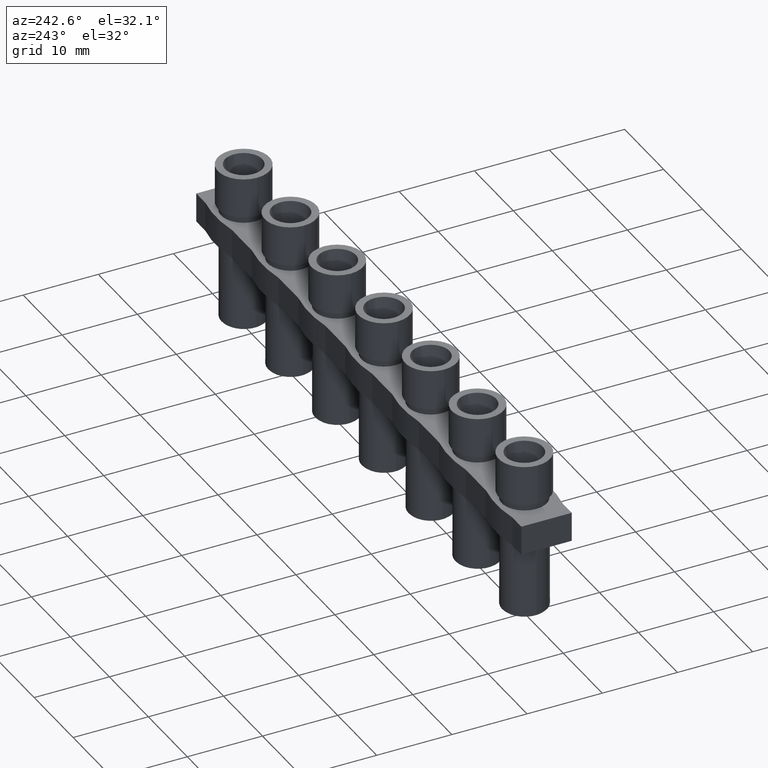
[diagram: clean part render]
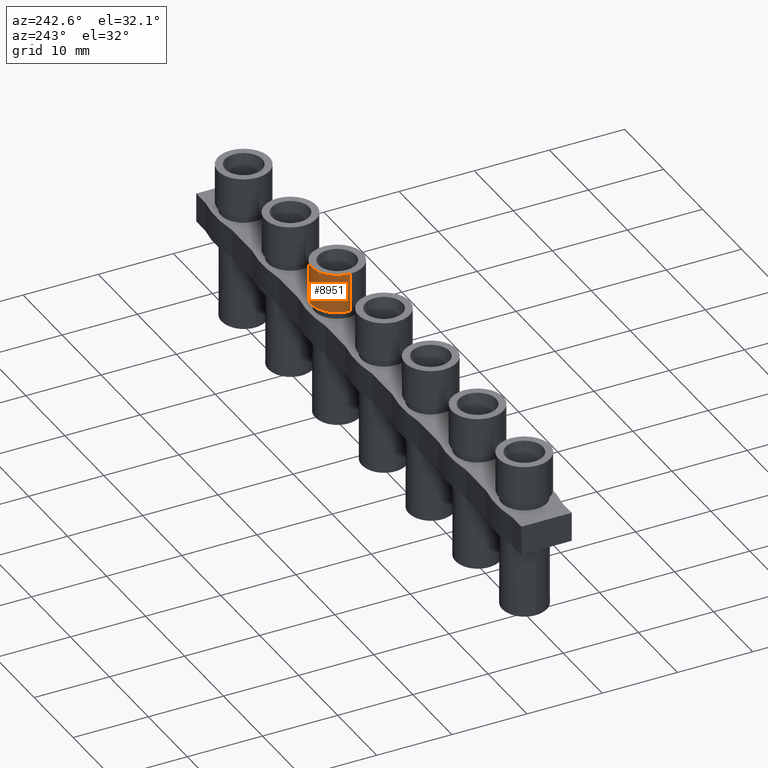
[diagram: same view with one face highlighted and labeled with its STEP entity id]
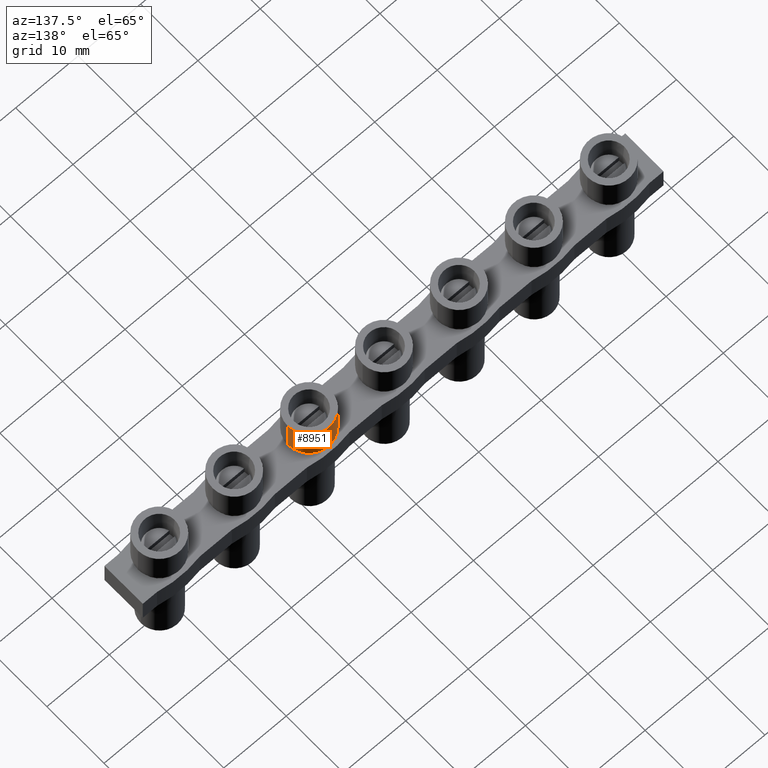
[diagram: same view with one face highlighted and labeled with its STEP entity id]
A machine part, auxiliary view. The second image highlights one B-rep face of the part: STEP entity #8951.
A second angle (auxiliary view) of the same face is appended — the face is thin or edge-on in the first view.
In plain terms, the highlighted cylindrical surface (edge-blend (fillet) strip) has radius 3.425 mm, axis along (-0, -0, -1).
Its self-contained STEP definition (entity closure, byte-faithful):
#805 = DIRECTION ( 'NONE',  ( -0.0000000000000000000, -0.0000000000000000000, -1.000000000000000000 ) ) ;
#806 = DIRECTION ( 'NONE',  ( -1.000000000000000000, 0.0000000000000000000, 0.0000000000000000000 ) ) ;
#811 = CYLINDRICAL_SURFACE ( 'NONE', #4239, 3.424999999999997600 ) ;
#816 = CARTESIAN_POINT ( 'NONE',  ( -12.00000000000000000, -2.289291466493766400E-015, 5.400000000000000400 ) ) ;
#833 = FACE_OUTER_BOUND ( 'NONE', #1256, .T. ) ;
#1256 = EDGE_LOOP ( 'NONE', ( #1844, #1858, #1943, #1832 ) ) ;
#1832 = ORIENTED_EDGE ( 'NONE', *, *, #8446, .F. ) ;
#1844 = ORIENTED_EDGE ( 'NONE', *, *, #8478, .T. ) ;
#1858 = ORIENTED_EDGE ( 'NONE', *, *, #8462, .T. ) ;
#1943 = ORIENTED_EDGE ( 'NONE', *, *, #8529, .F. ) ;
#2293 = VERTEX_POINT ( 'NONE', #4959 ) ;
#2307 = VERTEX_POINT ( 'NONE', #5035 ) ;
#3574 = VECTOR ( 'NONE', #7650, 1000.000000000000000 ) ;
#3581 = VECTOR ( 'NONE', #7754, 1000.000000000000000 ) ;
#3608 = CIRCLE ( 'NONE', #3669, 3.424999999999997600 ) ;
#3669 = AXIS2_PLACEMENT_3D ( 'NONE', #7913, #7929, #7915 ) ;
#3726 = AXIS2_PLACEMENT_3D ( 'NONE', #8170, #8168, #8135 ) ;
#3731 = CIRCLE ( 'NONE', #3726, 3.424999999999997600 ) ;
#4239 = AXIS2_PLACEMENT_3D ( 'NONE', #816, #805, #806 ) ;
#4959 = CARTESIAN_POINT ( 'NONE',  ( -8.575000000000002800, -1.869849937785798600E-015, 5.400000000000000400 ) ) ;
#5035 = CARTESIAN_POINT ( 'NONE',  ( -15.42499999999999700, -2.289291466493766400E-015, 5.400000000000000400 ) ) ;
#5154 = CARTESIAN_POINT ( 'NONE',  ( -8.575000000000002800, -1.869849937785798600E-015, 0.1999999999999996500 ) ) ;
#5157 = CARTESIAN_POINT ( 'NONE',  ( -15.42499999999999700, -2.289291466493766400E-015, 0.1999999999999996500 ) ) ;
#6860 = VERTEX_POINT ( 'NONE', #5154 ) ;
#6876 = VERTEX_POINT ( 'NONE', #5157 ) ;
#7650 = DIRECTION ( 'NONE',  ( -0.0000000000000000000, -0.0000000000000000000, -1.000000000000000000 ) ) ;
#7677 = LINE ( 'NONE', #7688, #3574 ) ;
#7688 = CARTESIAN_POINT ( 'NONE',  ( -15.42499999999999700, -2.289291466493766400E-015, 5.400000000000000400 ) ) ;
#7753 = CARTESIAN_POINT ( 'NONE',  ( -8.575000000000002800, -1.869849937785798600E-015, 5.400000000000000400 ) ) ;
#7754 = DIRECTION ( 'NONE',  ( -0.0000000000000000000, -0.0000000000000000000, -1.000000000000000000 ) ) ;
#7787 = LINE ( 'NONE', #7753, #3581 ) ;
#7913 = CARTESIAN_POINT ( 'NONE',  ( -12.00000000000000000, -2.289291466493766400E-015, 5.400000000000000400 ) ) ;
#7915 = DIRECTION ( 'NONE',  ( -1.000000000000000000, 0.0000000000000000000, 0.0000000000000000000 ) ) ;
#7929 = DIRECTION ( 'NONE',  ( -0.0000000000000000000, -0.0000000000000000000, -1.000000000000000000 ) ) ;
#8135 = DIRECTION ( 'NONE',  ( 1.000000000000000000, 0.0000000000000000000, 0.0000000000000000000 ) ) ;
#8168 = DIRECTION ( 'NONE',  ( -0.0000000000000000000, -0.0000000000000000000, -1.000000000000000000 ) ) ;
#8170 = CARTESIAN_POINT ( 'NONE',  ( -12.00000000000000000, -2.289291466493766400E-015, 0.1999999999999996500 ) ) ;
#8446 = EDGE_CURVE ( 'NONE', #2307, #6876, #7677, .T. ) ;
#8462 = EDGE_CURVE ( 'NONE', #2293, #6860, #7787, .T. ) ;
#8478 = EDGE_CURVE ( 'NONE', #2307, #2293, #3608, .T. ) ;
#8529 = EDGE_CURVE ( 'NONE', #6876, #6860, #3731, .T. ) ;
#8951 = ADVANCED_FACE ( 'NONE', ( #833 ), #811, .T. ) ;